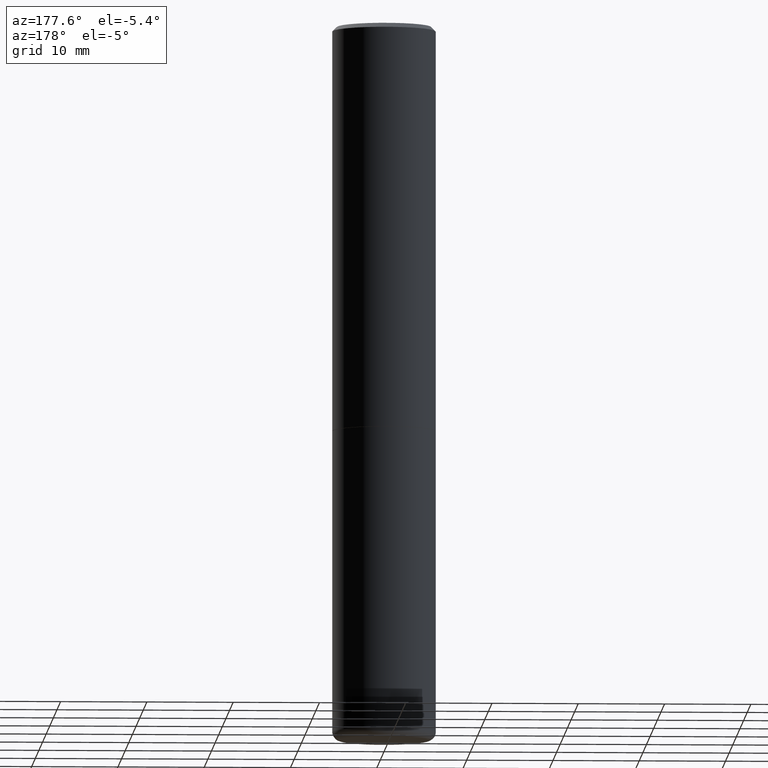
[diagram: clean part render]
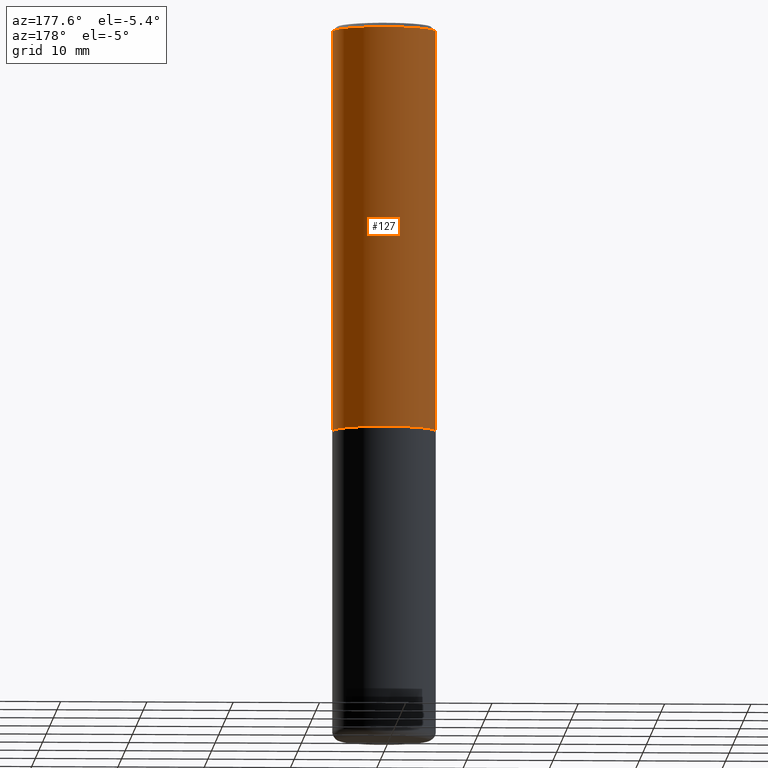
[diagram: same view with one face highlighted and labeled with its STEP entity id]
A machine part, auxiliary view. The second image highlights one B-rep face of the part: STEP entity #127.
In plain terms, the highlighted cylindrical surface (partial cylindrical patch) has radius 5.9995 mm, axis along (-0, 0, 1).
Its self-contained STEP definition (entity closure, byte-faithful):
#9 = CARTESIAN_POINT ( 'NONE',  ( 0.2362000000000002153, -8.106521372526011094E-15, -1.849400000000000155 ) ) ;
#13 = CARTESIAN_POINT ( 'NONE',  ( -0.2362000000000002431, -1.585185665551328595E-15, -1.849400000000000155 ) ) ;
#25 = ORIENTED_EDGE ( 'NONE', *, *, #208, .F. ) ;
#53 = DIRECTION ( 'NONE',  ( -2.445468806185136597E-29, 3.491481338843145583E-15, 1.000000000000000000 ) ) ;
#54 = VERTEX_POINT ( 'NONE', #199 ) ;
#72 = DIRECTION ( 'NONE',  ( -2.445468806185136597E-29, 3.491481338843145583E-15, 1.000000000000000000 ) ) ;
#74 = DIRECTION ( 'NONE',  ( 1.000000000000000000, -6.982962677686266711E-15, 4.876176775795935793E-29 ) ) ;
#75 = EDGE_CURVE ( 'NONE', #276, #333, #364, .T. ) ;
#84 = DIRECTION ( 'NONE',  ( 1.000000000000000000, -6.982962677686266711E-15, 0.000000000000000000 ) ) ;
#87 = ORIENTED_EDGE ( 'NONE', *, *, #246, .T. ) ;
#93 = EDGE_CURVE ( 'NONE', #276, #118, #387, .T. ) ;
#103 = CYLINDRICAL_SURFACE ( 'NONE', #380, 0.2362000000000000766 ) ;
#111 = LINE ( 'NONE', #235, #128 ) ;
#116 = FACE_OUTER_BOUND ( 'NONE', #407, .T. ) ;
#118 = VERTEX_POINT ( 'NONE', #395 ) ;
#127 = ADVANCED_FACE ( 'NONE', ( #116 ), #103, .T. ) ;
#128 = VECTOR ( 'NONE', #206, 39.37007874015748143 ) ;
#136 = VECTOR ( 'NONE', #418, 39.37007874015748143 ) ;
#151 = ORIENTED_EDGE ( 'NONE', *, *, #75, .T. ) ;
#199 = CARTESIAN_POINT ( 'NONE',  ( -0.2361999999999999655, 1.579546157692632833E-15, -0.02000000000000005246 ) ) ;
#206 = DIRECTION ( 'NONE',  ( -2.445468806185136877E-29, 3.491481338843145188E-15, 1.000000000000000000 ) ) ;
#208 = EDGE_CURVE ( 'NONE', #118, #54, #392, .T. ) ;
#229 = DIRECTION ( 'NONE',  ( -2.445468806185136597E-29, 3.491481338843145583E-15, 1.000000000000000000 ) ) ;
#235 = CARTESIAN_POINT ( 'NONE',  ( -0.2362000000000000766, 1.678301941865357183E-15, -1.161852468318209177E-29 ) ) ;
#246 = EDGE_CURVE ( 'NONE', #333, #54, #111, .T. ) ;
#266 = AXIS2_PLACEMENT_3D ( 'NONE', #359, #53, #325 ) ;
#276 = VERTEX_POINT ( 'NONE', #9 ) ;
#289 = CARTESIAN_POINT ( 'NONE',  ( 0.2362000000000000766, -1.649375784469496722E-15, 1.151752954443000368E-29 ) ) ;
#309 = ORIENTED_EDGE ( 'NONE', *, *, #93, .F. ) ;
#313 = AXIS2_PLACEMENT_3D ( 'NONE', #372, #72, #84 ) ;
#325 = DIRECTION ( 'NONE',  ( 1.000000000000000000, -6.982962677686266711E-15, 0.000000000000000000 ) ) ;
#333 = VERTEX_POINT ( 'NONE', #13 ) ;
#359 = CARTESIAN_POINT ( 'NONE',  ( 4.522650010158792351E-29, -6.457145588056513780E-15, -1.849400000000000155 ) ) ;
#364 = CIRCLE ( 'NONE', #266, 0.2362000000000002153 ) ;
#367 = CARTESIAN_POINT ( 'NONE',  ( 0.000000000000000000, 0.000000000000000000, 0.000000000000000000 ) ) ;
#372 = CARTESIAN_POINT ( 'NONE',  ( 4.890937612370285420E-31, -6.982962677686308865E-17, -0.02000000000000005246 ) ) ;
#380 = AXIS2_PLACEMENT_3D ( 'NONE', #367, #229, #74 ) ;
#387 = LINE ( 'NONE', #289, #136 ) ;
#392 = CIRCLE ( 'NONE', #313, 0.2361999999999999655 ) ;
#395 = CARTESIAN_POINT ( 'NONE',  ( 0.2361999999999999655, -1.690279253850498574E-15, -0.02000000000000005246 ) ) ;
#407 = EDGE_LOOP ( 'NONE', ( #151, #87, #25, #309 ) ) ;
#418 = DIRECTION ( 'NONE',  ( -2.445468806185136877E-29, 3.491481338843145188E-15, 1.000000000000000000 ) ) ;